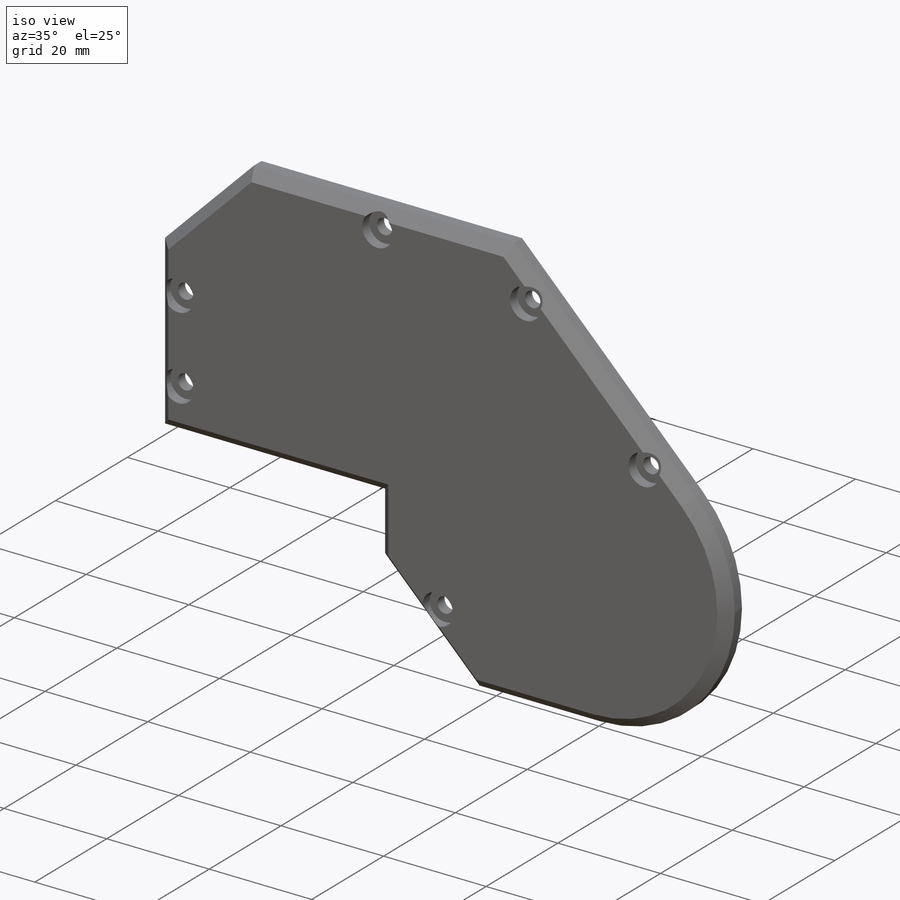
[diagram: iso view]
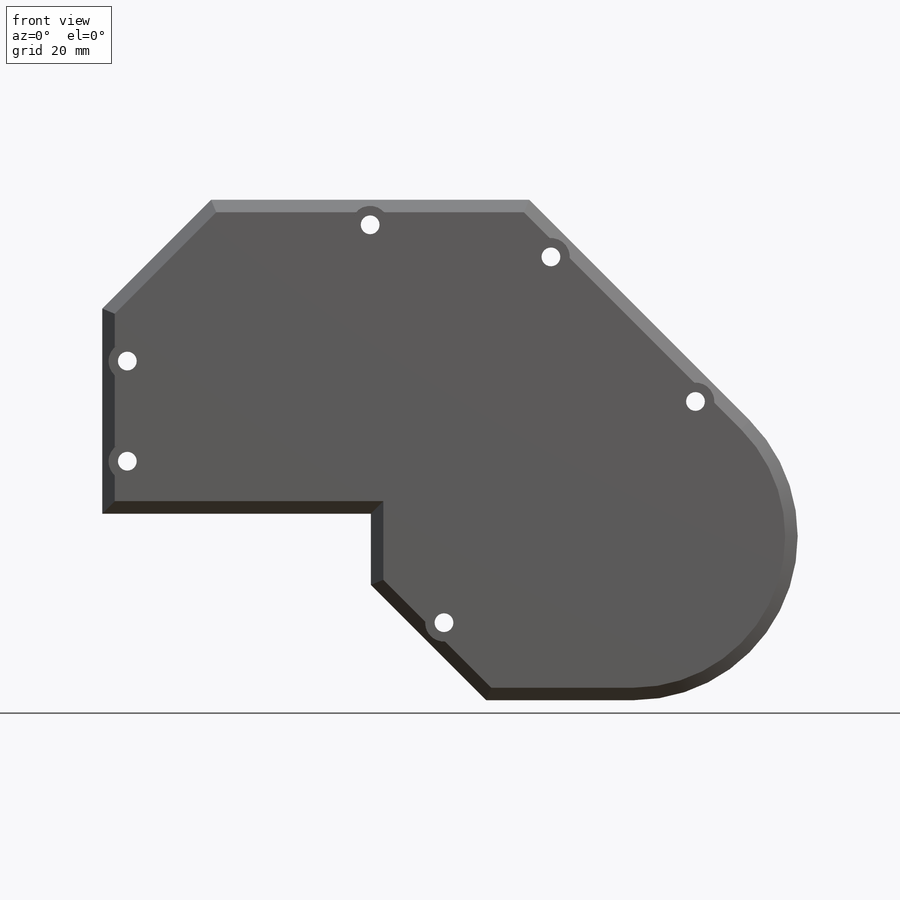
[diagram: front view]
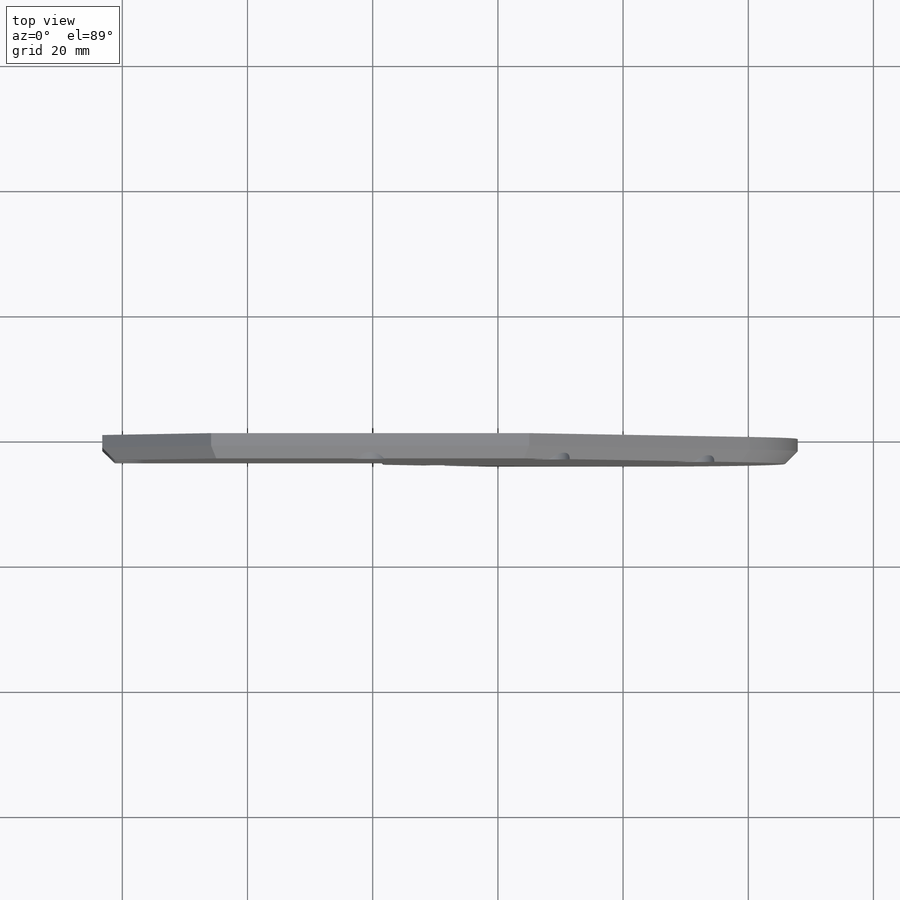
[diagram: top view]
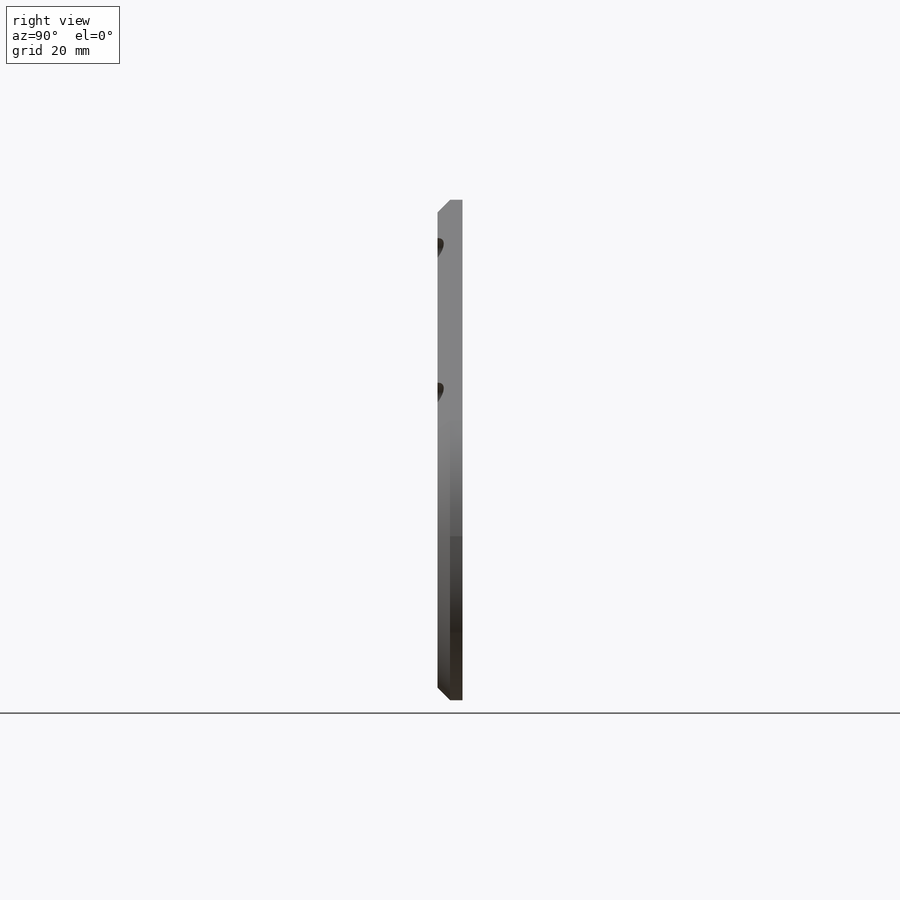
[diagram: right view]
SOLIDWORKS PART (.sldprt)
format: sldprt  version: not decoded by parser v0  size: 485,376 bytes
history: native  units: mm
features: sketch x11, cut_extrude x8, plane x3, extrude x3, material x1, chamfer x1, mirror x1 (+10 scaffold rows collapsed)
feature tree (38):
  scaffold x10  (default folders/planes/origin — collapsed)
  material  "Material <não especificado>"
  plane  "Plano frontal"
  plane  "Plano superior"
  plane  "Plano direito"
  sketch  "Model"  dims[c1.D2=~23.299078mm c1.D3=~17.669026mm c1.D1=0.7mm c2.D2=2.5mm]
  extrude  "Ressalto-extrusão1"  Depth=48mm
  sketch  "Esboço12"  dims[D1=~12.452851mm]
  cut_extrude  "Corte-extrusão10"  Depth=10mm
  sketch  "Esboço13"  dims[D1=~102.420334mm]
  cut_extrude  "Corte-extrusão11"  Depth=10mm
  sketch  "Esboço14"  dims[D1=16.0mm]
  cut_extrude  "Corte-extrusão12"  Depth=10mm
  sketch  "Esboço15"  dims[D1=~14.674666mm]
  cut_extrude  "Corte-extrusão13"  Depth=10mm
  sketch  "Esboço16"  dims[D1=~0.46391mm]
  cut_extrude  "Corte-extrusão14"  Depth=10mm
  sketch  "Esboço17"  dims[D1=2.8mm D2=2.8mm]
  extrude  "Ressalto-extrusão2"  Depth=4mm
  sketch  "Esboço18"  dims[D1=~2.422041mm]
  extrude  "Ressalto-extrusão3"  Depth=4mm
  chamfer  "Chanfro1"  Distance=2mm Angle=45deg
  sketch  "Esboço19"  dims[D1=0.0mm D2=0.0mm D3=0.0mm D4=0.0mm D5=0.0mm D6=0.0mm D7=0.0mm]
  cut_extrude  "Corte-extrusão15"  [1 undecoded]
  sketch  "Esboço20"  dims[D1=6.0mm]
  cut_extrude  "Corte-extrusão16"  Depth=2mm
  sketch  "Esboço21"  dims[D1=0.0mm]
  mirror  "Espelhar1"
  cut_extrude  "Corte-extrusão17"  Depth=10mm
decode coverage: 22 of 24 modeling features carry decoded parameters
note: ~ marks probable driven/reference dimensions
note: 1 parameter value undecoded
note: suppression state not decoded; provenance and decode notes live in map.json
